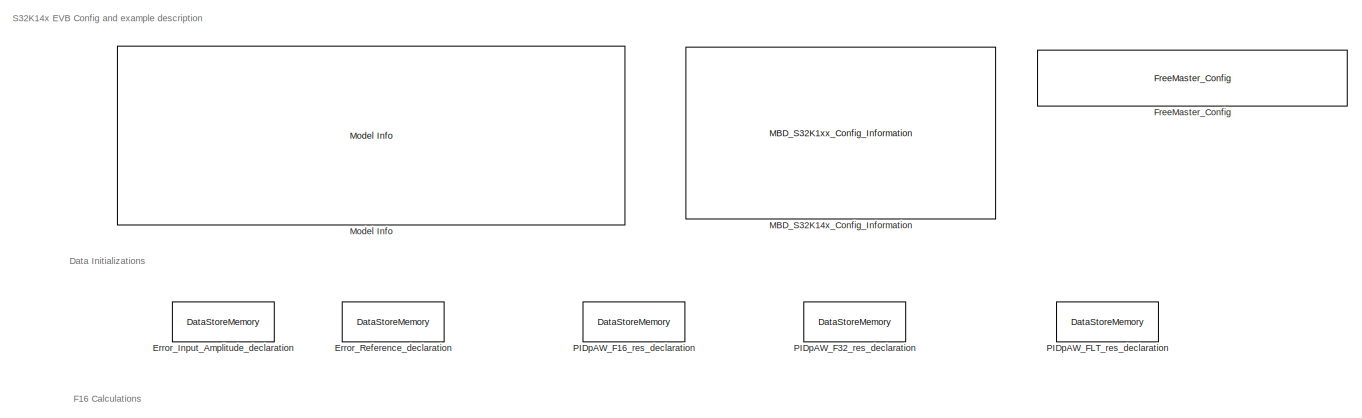
[diagram: root canvas - part 1/4, top center region]
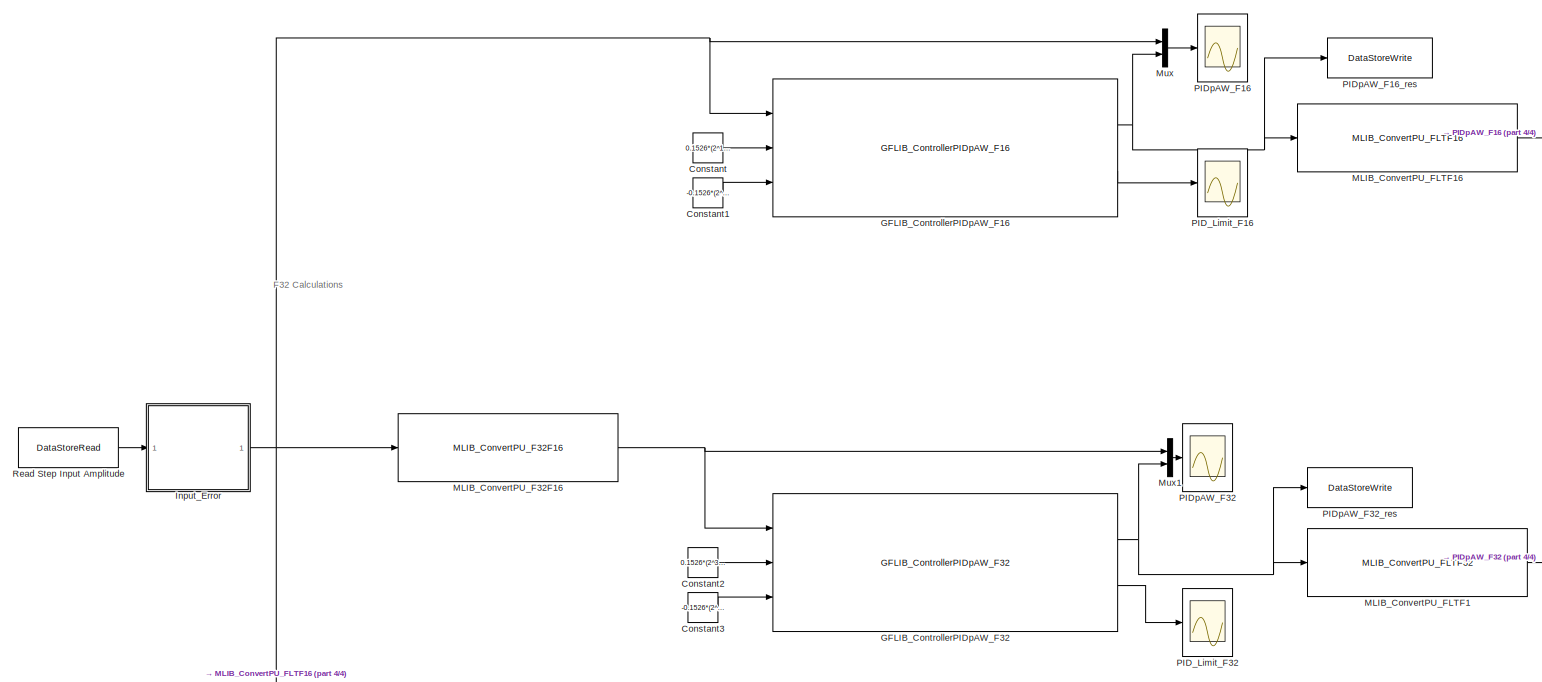
[diagram: root canvas - part 2/4, full width, middle band]
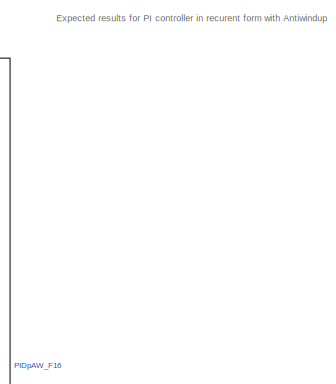
[diagram: root canvas - part 3/4, middle right region]
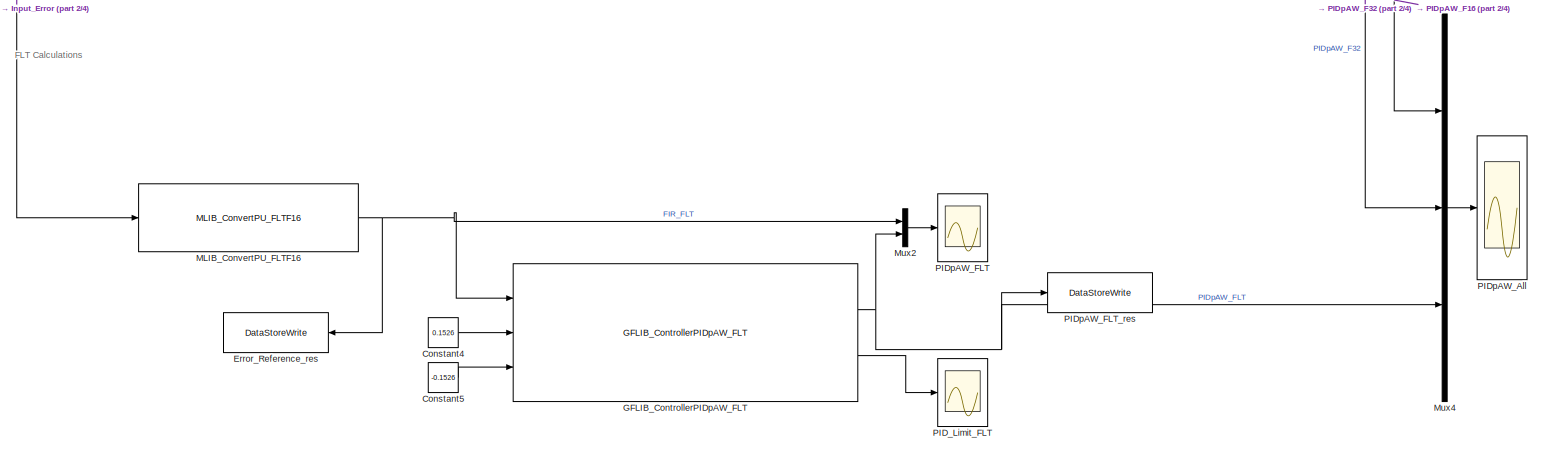
[diagram: root canvas - part 4/4, full width, bottom band]
MODEL ammclib_gflib_pidp_s32k14x
KIND model
CONFIG InitFcn = mbd_s32k_consistency_checks(bdroot(gcs));
BLOCK [Constant] Constant
  OutDataTypeStr = Inherit: Inherit via back propagation
  SID = 710
  Value = 0.1526*(2^15-1)
BLOCK [Constant] Constant1
  OutDataTypeStr = Inherit: Inherit via back propagation
  SID = 711
  Value = -0.1526*(2^15-1)
BLOCK [Constant] Constant2
  OutDataTypeStr = Inherit: Inherit via back propagation
  SID = 733
  Value = 0.1526*(2^31-1)
BLOCK [Constant] Constant3
  OutDataTypeStr = Inherit: Inherit via back propagation
  SID = 734
  Value = -0.1526*(2^31-1)
BLOCK [Constant] Constant4
  OutDataTypeStr = Inherit: Inherit via back propagation
  SID = 743
  Value = 0.1526
BLOCK [Constant] Constant5
  OutDataTypeStr = Inherit: Inherit via back propagation
  SID = 744
  Value = -0.1526
BLOCK [DataStoreMemory] Error_Input_Amplitude_declaration
  DataStoreName = Error_Input_Amplitude
  InitialValue = 8192
  OutDataTypeStr = int16
  OutMax = 32767
  OutMin = -32768
  Priority = 1
  SID = 582
  ShowAdditionalParam = off
  WriteAfterReadMsg = warning
  WriteAfterWriteMsg = warning
BLOCK [DataStoreMemory] Error_Reference_declaration
  DataStoreName = Error_Reference
  OutDataTypeStr = single
  OutMax = 1
  OutMin = -1
  Priority = 1
  SID = 706
  ShowAdditionalParam = off
  WriteAfterReadMsg = warning
  WriteAfterWriteMsg = warning
BLOCK [DataStoreWrite] Error_Reference_res
  DataStoreName = Error_Reference
  Ports = [1]
  SID = 707
BLOCK [Reference] FreeMaster_Config  REF=mbd_s32k1xx_ec_toolbox/Utility Blocks/FreeMaster_Config
  Ports = []
  SID = 564
  SourceBlock = mbd_s32k1xx_ec_toolbox/Utility Blocks/FreeMaster_Config
  SourceType = fm_s32k_config
  baudrate = 115200
  comm_buffer_size = 255
  comm_buffer_size_auto = on
  comm_rqueue_size = 32
  comm_rqueue_size_default = on
  interface = LPUART1
  isr_prio = 15
  max_rec_vars = 8
  max_scope_vars = 8
  mode = Short Interrupt
  rec_buff_size = 1024
  rec_timebase = 0
  rec_timebase_unit = milliseconds
  rxd = PTC6: [LPUART1_RX | Receive]
  show_adv_opts = off
  txd = PTC7: [LPUART1_TX | Transmit]
  use_recorder = on
  use_scope = on
BLOCK [Reference] GFLIB_ControllerPIDpAW_F16  REF=ammclib_bam_s32k14x/GFLIB/bam_f16/GFLIB_ControllerPIDpAW_F16  (lib defined in mdl_f341c9dd7fd9)
  Ports = [3, 2]
  SID = 754
  SourceBlock = ammclib_bam_s32k14x/GFLIB/bam_f16/GFLIB_ControllerPIDpAW_F16
  SourceType = GFLIB_ControllerPIDpAW_F16
  f16DerivGain = 0.001*(2^15-1)
  f16FiltCoef = 0.4*(2^15-1)
  f16IntegGain = 0.0006*(2^15-1)
  f16PropGain = 0.006*(2^15-1)
  s16DerivGainShift = 0
  s16IntegGainShift = 0
  s16PropGainShift = 0
BLOCK [Reference] GFLIB_ControllerPIDpAW_F32  REF=ammclib_bam_s32k14x/GFLIB/bam_f32/GFLIB_ControllerPIDpAW_F32  (lib defined in mdl_f341c9dd7fd9)
  Ports = [3, 2]
  SID = 756
  SourceBlock = ammclib_bam_s32k14x/GFLIB/bam_f32/GFLIB_ControllerPIDpAW_F32
  SourceType = GFLIB_ControllerPIDpAW_F32
  f32DerivGain = 0.001*(2^31-1)
  f32FiltCoef = 0.4*(2^31-1)
  f32IntegGain = 0.0006*(2^31-1)
  f32PropGain = 0.006*(2^31-1)
  s16DerivGainShift = 0
  s16IntegGainShift = 0
  s16PropGainShift = 0
BLOCK [Reference] GFLIB_ControllerPIDpAW_FLT  REF=ammclib_bam_s32k14x/GFLIB/bam_flt/GFLIB_ControllerPIDpAW_FLT  (lib defined in mdl_f341c9dd7fd9)
  Ports = [3, 2]
  SID = 757
  SourceBlock = ammclib_bam_s32k14x/GFLIB/bam_flt/GFLIB_ControllerPIDpAW_FLT
  SourceType = GFLIB_ControllerPIDpAW_FLT
  fltDerivGain = 0.001
  fltFiltCoef = 0.4
  fltIntegGain = 0.0006
  fltPropGain = 0.006
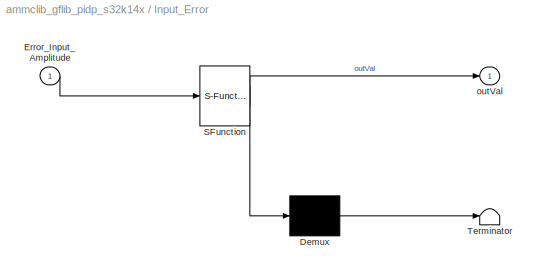
BLOCK [SubSystem] Input_Error
  ErrorFcn = Stateflow.Translate.translate
  PermitHierarchicalResolution = ExplicitOnly
  Ports = [1, 1]
  RequestExecContextInheritance = off
  SFBlockType = Chart
  SID = 635
  TreatAsAtomicUnit = on
  Variant = off
BLOCK [Demux] Input_Error/ Demux 
  Outputs = 1
  Ports = [1, 1]
  SID = 635::32
BLOCK [S-Function] Input_Error/ SFunction 
  EnableBusSupport = on
  FunctionName = sf_sfun
  PortCounts = [1 2]
  Ports = [1, 2]
  SFcnIsStateOwnerBlock = off
  SFunctionDeploymentMode = off
  SID = 635::31
  Tag = Stateflow S-Function ammclib_gflib_pidp_s32k14x 1
BLOCK [Terminator] Input_Error/ Terminator 
  SID = 635::33
BLOCK [Inport] Input_Error/Error_Input_Amplitude
  IconDisplay = Port number
  SID = 635::30
BLOCK [Outport] Input_Error/outVal
  IconDisplay = Port number
  SID = 635::5
BLOCK [Reference] MBD_S32K14x_Config_Information  REF=mbd_s32k1xx_ec_toolbox/MBD_S32K1xx_Config_Information
  ADC_PcrCheckEnDis = on
  AMMCLIB_PcrCheckEnDis = on
  CMP_PcrCheckEnDis = on
  CSEc_PcrCheckEnDis = on
  ConfigParams_PcrCheckEnDis = on
  FM_PcrCheckEnDis = on
  FTM_Dual_Edge_Inputs_PcrCheckEnDis = on
  FTM_Hall_Sensor_Inputs_PcrCheckEnDis = on
  FTM_Input_Edge_Inputs_PcrCheckEnDis = on
  FTM_PWM_PcrCheckEnDis = on
  FTM_Quadrature_Inputs_PcrCheckEnDis = on
  FlexCAN_PcrCheckEnDis = on
  FlexIO_PcrCheckEnDis = on
  GPIO_InputPcrCheckEnDis = on
  GPIO_OutputPcrCheckEnDis = on
  LIN_PcrCheckEnDis = on
  LPI2C_PcrCheckEnDis = on
  LPSPI_PcrCheckEnDis = on
  LPTMR_PcrCheckEnDis = on
  LPUART_PcrCheckEnDis = on
  ModelRef_PcrCheckEnDis = on
  PDB0_PcrCheckEnDis = on
  PIT_PcrCheckEnDis = on
  Ports = []
  Priority = 0
  Profile_PcrCheckEnDis = on
  RTC_PcrCheckEnDis = on
  SBC_PcrCheckEnDis = on
  SID = 1
  SourceBlock = mbd_s32k1xx_ec_toolbox/MBD_S32K1xx_Config_Information
  SourceType = MBDTBX_EC_S32K
  WDOG_PcrCheckEnDis = on
  config_params = []
  disp_str = Target : S32K142-16KB_SRAM\nPackage : 100-pin\nSystem clock : 80 MHz\nXTAL clock : External 8 MHz\nCompiler : GCC\nTarget Type : FLASH\nDownload Code after build : (OpenSDA: E)\nStep Tick Interrupt Priority : 15
  ds_import_enable = on
  eDMA_PcrCheckEnDis = on
  gcc_target_assemble_opts = -mcpu=cortex-m4 -mthumb -mfloat-abi=hard -mfpu=fpv4-sp-d16 -g
  gcc_target_compile_opts = -mcpu=cortex-m4 -mthumb -mfloat-abi=hard -mfpu=fpv4-sp-d16 -O1 -g -gstrict-dwarf
  gcc_target_default_lcf = on
  gcc_target_link_opts = -mcpu=cortex-m4 -mthumb -mfloat-abi=hard -mfpu=fpv4-sp-d16
  gcc_target_user_lcf = S32K144_64_flash.ld
  ghs_target_assemble_opts = -cpu=cortexm4f -fpu=vfpv4_d16
  ghs_target_compile_opts = -cpu=cortexm4f -thumb -DARM_MATH_CM4 -fpu=vfpv4_d16 -fsingle -Ogeneral -Wundef -Wimplicit-int -Wshadow -Wtrigraphs --no_commons --gnu_asm -gnu99 -gdwarf-2 -G
  ghs_target_default_lcf = off
  ghs_target_link_opts = -cpu=cortexm4f -thumb -fpu=vfpv4_d16
  ghs_target_user_lcf = S32K144_64_flash.ld
  iar_target_assemble_opts = --cpu Cortex-M4F --thumb --fpu VFPv4_sp
  iar_target_compile_opts = --cpu=Cortex-M4F --thumb --fpu=VFPv4_sp -Ol -e --debug --dlib_config normal
  iar_target_default_lcf = off
  iar_target_link_opts = --no_exceptions --vfe --inline
  iar_target_user_lcf = S32K144_64_flash.icf
  mbdt_ver = 0
  mcu_steptick_prio = 15
  mcu_steptick_timer = LPIT Channel 0
  mcu_system_clock_freq = 80
  mcu_target_name = S32K144
  mcu_target_package = 100-LQFP
  mcu_target_sram_size = 64KB
  mcu_xtal_freq = External 8
  pil_download_enable = off
  pil_download_rate = 57600
  pil_opensda_drive = Custom
  pil_opensda_drive_custom = D
  pil_uart_instance = 0
  pil_uart_rx = PTA2: [LPUART0_RX | Receive]
  pil_uart_tx = PTA3: [LPUART0_TX | Transmit]
  rbl_com_port = Custom
  rbl_com_port_custom = COM1
  rbl_download_enable = on
  rbl_download_interface = OpenSDA
  rbl_restart_request = off
  rbl_start_delay = 5000000
  target_compiler = GCC
  target_memory = FLASH
BLOCK [Reference] MLIB_ConvertPU_F32F16  REF=ammclib_bam_s32k14x/MLIB/bam_f32/MLIB_ConvertPU_F32F16  (lib defined in mdl_f341c9dd7fd9)
  Ports = [1, 1]
  SID = 637
  SourceBlock = ammclib_bam_s32k14x/MLIB/bam_f32/MLIB_ConvertPU_F32F16
  SourceType = MLIB_ConvertPU_F32
BLOCK [Reference] MLIB_ConvertPU_FLTF1  REF=ammclib_bam_s32k14x/MLIB/bam_flt/MLIB_ConvertPU_FLTF32  (lib defined in mdl_f341c9dd7fd9)
  Ports = [1, 1]
  SID = 723
  SourceBlock = ammclib_bam_s32k14x/MLIB/bam_flt/MLIB_ConvertPU_FLTF32
  SourceType = MLIB_ConvertPU_FLT
BLOCK [Reference] MLIB_ConvertPU_FLTF16  REF=ammclib_bam_s32k14x/MLIB/bam_flt/MLIB_ConvertPU_FLTF16  (lib defined in mdl_f341c9dd7fd9)
  Ports = [1, 1]
  SID = 643
  SourceBlock = ammclib_bam_s32k14x/MLIB/bam_flt/MLIB_ConvertPU_FLTF16
  SourceType = MLIB_ConvertPU_FLT
BLOCK [Reference] MLIB_ConvertPU_FLTF16    REF=ammclib_bam_s32k14x/MLIB/bam_flt/MLIB_ConvertPU_FLTF16  (lib defined in mdl_f341c9dd7fd9)
  Ports = [1, 1]
  SID = 716
  SourceBlock = ammclib_bam_s32k14x/MLIB/bam_flt/MLIB_ConvertPU_FLTF16
  SourceType = MLIB_ConvertPU_FLT
BLOCK [Reference] Model Info  REF=simulink/Model-Wide\nUtilities/Model Info
  DisplayStringWithTags = Model Name: %<ModelName>\n\nDescription: %<Description>
  Frame = off
  HorizontalTextAlignment = Left
  LeftAlignmentValue = 0.02
  MaskDisplayString = Model Name: ammclib_gflib_pidp_s32k14x\\n\\nDescription: This model tests the AMMCLIB GFLIB PI Recurent Form Controller blocks\\n\\nValidation:\\n- Run the model in Simulation and check if the results look like the ones shown in the scope capture\\n- Open Freemaster (ammclib_gflib_pir_s32k14x.pmp) and compare the HW results against the Simulated ones
  Ports = []
  SID = 524
  SourceBlock = simulink/Model-Wide\nUtilities/Model Info
  SourceProductBaseCode = SL
  SourceProductName = Simulink
  SourceType = CMBlock
BLOCK [Mux] Mux
  DisplayOption = bar
  Inputs = 2
  Ports = [2, 1]
  SID = 639
BLOCK [Mux] Mux1
  DisplayOption = bar
  Inputs = 2
  Ports = [2, 1]
  SID = 726
BLOCK [Mux] Mux2
  DisplayOption = bar
  Inputs = 2
  Ports = [2, 1]
  SID = 738
BLOCK [Mux] Mux4
  DisplayOption = bar
  Inputs = 3
  Ports = [3, 1]
  SID = 747
BLOCK [Scope] PID_Limit_F16
  NumInputPorts = 1
  Ports = [1]
  SID = 755
  ScopeSpecificationString = Simulink.scopes.TimeScopeBlockCfg('CurrentConfiguration', extmgr.ConfigurationSet(extmgr.Configuration('Core','General UI',true),extmgr.Configuration('Core','Source UI',true),extmgr.Configuration('Sources','WiredSimulink',true,'DataLoggingVariableName','ScopeData1'),extmgr.Configuration('Visuals','Time Domain',true,'SerializedDisplays',{struct('MinYLimReal','-0.125','MaxYLimReal','1.125','YLabelRe...<+2237ch>
BLOCK [Scope] PID_Limit_F32
  NumInputPorts = 1
  Ports = [1]
  SID = 758
  ScopeSpecificationString = Simulink.scopes.TimeScopeBlockCfg('CurrentConfiguration', extmgr.ConfigurationSet(extmgr.Configuration('Core','General UI',true),extmgr.Configuration('Core','Source UI',true),extmgr.Configuration('Sources','WiredSimulink',true,'DataLoggingVariableName','ScopeData1'),extmgr.Configuration('Visuals','Time Domain',true,'SerializedDisplays',{struct('MinYLimReal','-0.125','MaxYLimReal','1.125','YLabelRe...<+2237ch>
BLOCK [Scope] PID_Limit_FLT
  NumInputPorts = 1
  Ports = [1]
  SID = 759
  ScopeSpecificationString = Simulink.scopes.TimeScopeBlockCfg('CurrentConfiguration', extmgr.ConfigurationSet(extmgr.Configuration('Core','General UI',true),extmgr.Configuration('Core','Source UI',true),extmgr.Configuration('Sources','WiredSimulink',true,'DataLoggingVariableName','ScopeData2'),extmgr.Configuration('Visuals','Time Domain',true,'SerializedDisplays',{struct('MinYLimReal','-0.125','MaxYLimReal','1.125','YLabelRe...<+2237ch>
BLOCK [Scope] PIDpAW_All
  NumInputPorts = 1
  Ports = [1]
  SID = 750
  ScopeSpecificationString = Simulink.scopes.TimeScopeBlockCfg('CurrentConfiguration', extmgr.ConfigurationSet(extmgr.Configuration('Core','General UI',true),extmgr.Configuration('Core','Source UI',true),extmgr.Configuration('Sources','WiredSimulink',true,'DataLoggingVariableName','ScopeData3'),extmgr.Configuration('Visuals','Time Domain',true,'SerializedDisplays',{struct('MinYLimReal','-0.19074','MaxYLimReal','0.19075','YLab...<+1729ch>
BLOCK [Scope] PIDpAW_F16
  NumInputPorts = 1
  Ports = [1]
  SID = 640
  ScopeSpecificationString = Simulink.scopes.TimeScopeBlockCfg('CurrentConfiguration', extmgr.ConfigurationSet(extmgr.Configuration('Core','General UI',true),extmgr.Configuration('Core','Source UI',true),extmgr.Configuration('Sources','WiredSimulink',true,'DataLoggingVariableName','ScopeData2'),extmgr.Configuration('Visuals','Time Domain',true,'SerializedDisplays',{struct('MinYLimReal','-10240.00000','MaxYLimReal','10240.0000...<+2296ch>
BLOCK [DataStoreWrite] PIDpAW_F16_res
  DataStoreName = PIDpAW_F16
  Ports = [1]
  SID = 717
BLOCK [DataStoreMemory] PIDpAW_F16_res_declaration
  DataStoreName = PIDpAW_F16
  OutDataTypeStr = int16
  Priority = 2
  ReadBeforeWriteMsg = warning
  SID = 714
  ShowAdditionalParam = off
  WriteAfterReadMsg = warning
  WriteAfterWriteMsg = warning
BLOCK [Scope] PIDpAW_F32
  NumInputPorts = 1
  Ports = [1]
  SID = 727
  ScopeSpecificationString = Simulink.scopes.TimeScopeBlockCfg('CurrentConfiguration', extmgr.ConfigurationSet(extmgr.Configuration('Core','General UI',true),extmgr.Configuration('Core','Source UI',true),extmgr.Configuration('Sources','WiredSimulink',true,'DataLoggingVariableName','ScopeData4'),extmgr.Configuration('Visuals','Time Domain',true,'SerializedDisplays',{struct('MinYLimReal','-671088640.00000','MaxYLimReal','671088...<+2339ch>
BLOCK [DataStoreWrite] PIDpAW_F32_res
  DataStoreName = PIDpAW_F32
  Ports = [1]
  SID = 725
BLOCK [DataStoreMemory] PIDpAW_F32_res_declaration
  DataStoreName = PIDpAW_F32
  OutDataTypeStr = int32
  Priority = 2
  ReadBeforeWriteMsg = warning
  SID = 719
  ShowAdditionalParam = off
  WriteAfterReadMsg = warning
  WriteAfterWriteMsg = warning
BLOCK [Scope] PIDpAW_FLT
  NumInputPorts = 1
  Ports = [1]
  SID = 760
  ScopeSpecificationString = Simulink.scopes.TimeScopeBlockCfg('CurrentConfiguration', extmgr.ConfigurationSet(extmgr.Configuration('Core','General UI',true),extmgr.Configuration('Core','Source UI',true),extmgr.Configuration('Sources','WiredSimulink',true,'DataLoggingVariableName','ScopeData3'),extmgr.Configuration('Visuals','Time Domain',true,'SerializedDisplays',{struct('MinYLimReal','-0.3125','MaxYLimReal','0.3125','YLabel...<+2238ch>
BLOCK [DataStoreWrite] PIDpAW_FLT_res
  DataStoreName = PIDpAW_FLT
  Ports = [1]
  SID = 742
BLOCK [DataStoreMemory] PIDpAW_FLT_res_declaration
  DataStoreName = PIDpAW_FLT
  OutDataTypeStr = single
  Priority = 2
  ReadBeforeWriteMsg = warning
  SID = 720
  ShowAdditionalParam = off
  WriteAfterReadMsg = warning
  WriteAfterWriteMsg = warning
BLOCK [DataStoreRead] Read Step Input Amplitude
  DataStoreName = Error_Input_Amplitude
  Ports = [0, 1]
  SID = 652
ANNOTATION (root): \n \n Expected results for PI controller in recurent form with Antiwindup \n
ANNOTATION (root): Data Initializations
ANNOTATION (root): F16 Calculations
ANNOTATION (root): F32 Calculations
ANNOTATION (root): FLT Calculations
ANNOTATION (root): S32K14x EVB Config and example description
LINE Constant1:1 -> GFLIB_ControllerPIDpAW_F16:3
LINE Constant2:1 -> GFLIB_ControllerPIDpAW_F32:2
LINE Constant3:1 -> GFLIB_ControllerPIDpAW_F32:3
LINE Constant4:1 -> GFLIB_ControllerPIDpAW_FLT:2
LINE Constant5:1 -> GFLIB_ControllerPIDpAW_FLT:3
LINE Constant:1 -> GFLIB_ControllerPIDpAW_F16:2
NET GFLIB_ControllerPIDpAW_F16:1 -> MLIB_ConvertPU_FLTF16  :1, Mux:2, PIDpAW_F16_res:1
LINE GFLIB_ControllerPIDpAW_F16:2 -> PID_Limit_F16:1
NET GFLIB_ControllerPIDpAW_F32:1 -> MLIB_ConvertPU_FLTF1:1, Mux1:2, PIDpAW_F32_res:1
LINE GFLIB_ControllerPIDpAW_F32:2 -> PID_Limit_F32:1
NET GFLIB_ControllerPIDpAW_FLT:1 -> Mux2:2, Mux4:3, PIDpAW_FLT_res:1
LINE GFLIB_ControllerPIDpAW_FLT:2 -> PID_Limit_FLT:1
LINE Input_Error/ Demux :1 -> Input_Error/ Terminator :1
LINE Input_Error/ SFunction :1 -> Input_Error/ Demux :1
LINE Input_Error/ SFunction :2 -> Input_Error/outVal:1
LINE Input_Error/Error_Input_Amplitude:1 -> Input_Error/ SFunction :1
NET Input_Error:1 -> GFLIB_ControllerPIDpAW_F16:1, MLIB_ConvertPU_F32F16:1, MLIB_ConvertPU_FLTF16:1, Mux:1
NET MLIB_ConvertPU_F32F16:1 -> GFLIB_ControllerPIDpAW_F32:1, Mux1:1
LINE MLIB_ConvertPU_FLTF16  :1 -> Mux4:1
NET MLIB_ConvertPU_FLTF16:1 -> Error_Reference_res:1, GFLIB_ControllerPIDpAW_FLT:1, Mux2:1
LINE MLIB_ConvertPU_FLTF1:1 -> Mux4:2
LINE Mux1:1 -> PIDpAW_F32:1
LINE Mux2:1 -> PIDpAW_FLT:1
LINE Mux4:1 -> PIDpAW_All:1
LINE Mux:1 -> PIDpAW_F16:1
LINE Read Step Input Amplitude:1 -> Input_Error:1
note: NET lines group one-source signal fan-out (src -> all destinations, sorted); 1:1 wires keep LINE
CHART Input_Error states=2 transitions=3
  STATE_LABEL 'A\\ndu:\\noutVal = Error_Input_Amplitude;\\ncntr=cntr+1;'
  STATE_LABEL 'A1\\ndu:\\noutVal = -Error_Input_Amplitude;\\ncntr=cntr-1;'
